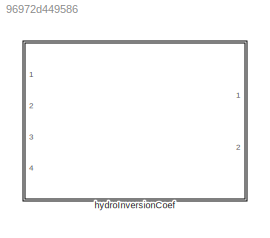
MODEL slx_96972d449586
KIND library
CONFIG AbsTol = auto
CONFIG EnableMultiTasking = off
CONFIG FixedStep = auto
CONFIG MaxStep = auto
CONFIG MinStep = auto
CONFIG RelTol = 1e-3
CONFIG SampleTimeConstraint = Unconstrained
CONFIG SolverName = VariableStepAuto
CONFIG StartTime = 0.0
CONFIG StopTime = 10.0
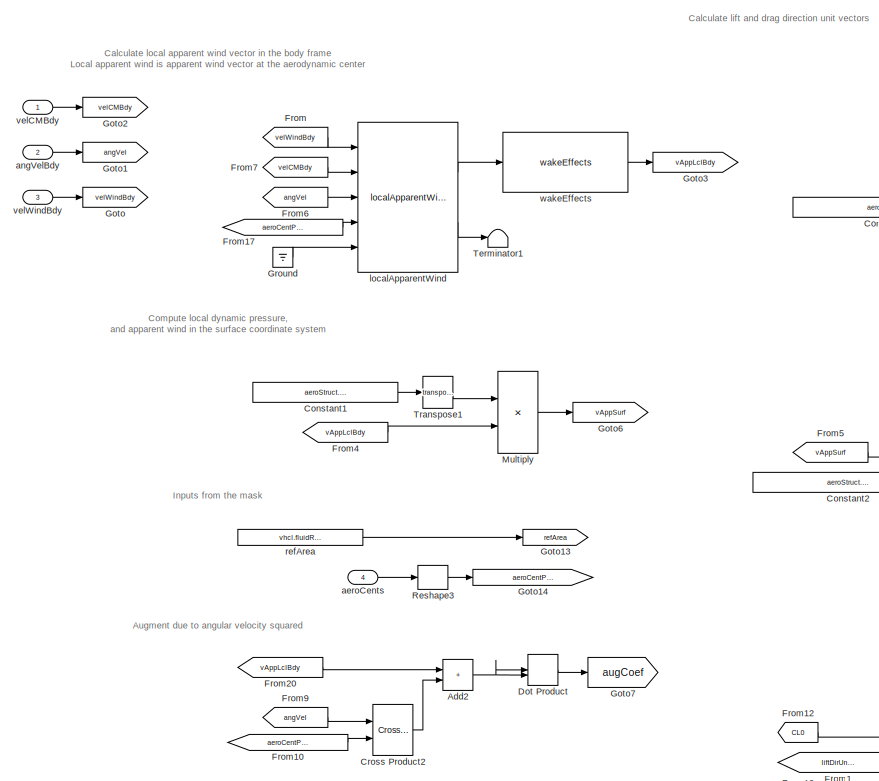
[diagram: hydroInversionCoef - part 1/2, middle left region]
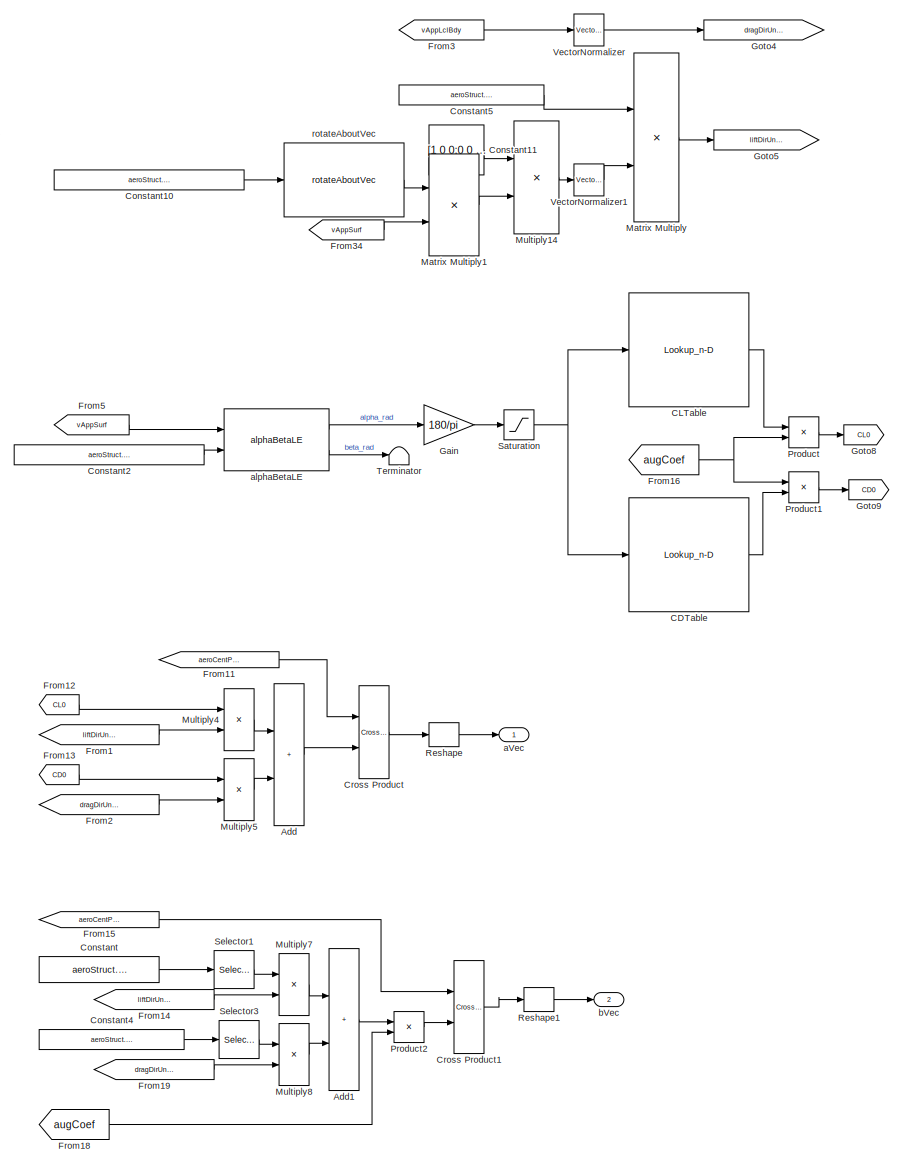
[diagram: hydroInversionCoef - part 2/2, right side, full height]
BLOCK [SubSystem] hydroInversionCoef
  Ports = [4, 2]
  RequestExecContextInheritance = off
BLOCK [Sum] hydroInversionCoef/Add
  IconShape = rectangular
  Ports = [2, 1]
BLOCK [Sum] hydroInversionCoef/Add1
  IconShape = rectangular
  Ports = [2, 1]
BLOCK [Sum] hydroInversionCoef/Add2
  IconShape = rectangular
  Ports = [2, 1]
BLOCK [Lookup_n-D] hydroInversionCoef/CDTable
  BreakpointsForDimension1 = aeroStruct.alpha.Value
  ExtrapMethod = Clip
  InputPortMap = u0
  InternalRulePriority = Speed
  LookupTableObject = CLTable
  NumberOfTableDimensions = 1
  Ports = [1, 1]
  RndMeth = Simplest
  Table = aeroStruct.CD.Value
  UseLastTableValue = on
BLOCK [Lookup_n-D] hydroInversionCoef/CLTable
  BreakpointsForDimension1 = aeroStruct.alpha.Value
  ExtrapMethod = Clip
  InputPortMap = u0
  InternalRulePriority = Speed
  LookupTableObject = CLTable
  NumberOfTableDimensions = 1
  Ports = [1, 1]
  RndMeth = Simplest
  Table = aeroStruct.CL.Value
  UseLastTableValue = on
BLOCK [Constant] hydroInversionCoef/Constant
  NameLocation = top
  Value = aeroStruct.gainCL.Value
BLOCK [Constant] hydroInversionCoef/Constant1
  Value = aeroStruct.RSurf2Bdy.Value
BLOCK [Constant] hydroInversionCoef/Constant10
  Value = aeroStruct.incAlphaUnitVecSurf.Value
BLOCK [Constant] hydroInversionCoef/Constant11
  Value = [1 0 0;0 0 0;0 0 1]
BLOCK [Constant] hydroInversionCoef/Constant2
  Value = aeroStruct.incAlphaUnitVecSurf.Value
BLOCK [Constant] hydroInversionCoef/Constant4
  NameLocation = top
  Value = aeroStruct.gainCD.Value
BLOCK [Constant] hydroInversionCoef/Constant5
  Value = aeroStruct.RSurf2Bdy.Value
BLOCK [Reference] hydroInversionCoef/Cross Product  REF=vrlib/Utilities/Cross Product
  Ports = [2, 1]
  SourceBlock = vrlib/Utilities/Cross Product
  SourceProductBaseCode = SL
  SourceType = Cross Product
BLOCK [Reference] hydroInversionCoef/Cross Product1  REF=vrlib/Utilities/Cross Product
  Ports = [2, 1]
  SourceBlock = vrlib/Utilities/Cross Product
  SourceProductBaseCode = SL
  SourceType = Cross Product
BLOCK [Reference] hydroInversionCoef/Cross Product2  REF=matrix_library/Cross Product
  Ports = [2, 1]
  SourceBlock = matrix_library/Cross Product
  SourceProductBaseCode = SL
  SourceType = CrossProduct
BLOCK [DotProduct] hydroInversionCoef/Dot Product
  OutDataTypeStr = Inherit: Inherit via internal rule
BLOCK [From] hydroInversionCoef/From
  GotoTag = velWindBdy
BLOCK [From] hydroInversionCoef/From1
  GotoTag = liftDirUnitVecBdy
BLOCK [From] hydroInversionCoef/From10
  GotoTag = aeroCentPosVecBdy
BLOCK [From] hydroInversionCoef/From11
  GotoTag = aeroCentPosVecBdy
BLOCK [From] hydroInversionCoef/From12
  GotoTag = CL0
BLOCK [From] hydroInversionCoef/From13
  GotoTag = CD0
BLOCK [From] hydroInversionCoef/From14
  GotoTag = liftDirUnitVecBdy
BLOCK [From] hydroInversionCoef/From15
  GotoTag = aeroCentPosVecBdy
BLOCK [From] hydroInversionCoef/From16
  GotoTag = augCoef
BLOCK [From] hydroInversionCoef/From17
  GotoTag = aeroCentPosVecBdy
BLOCK [From] hydroInversionCoef/From18
  GotoTag = augCoef
BLOCK [From] hydroInversionCoef/From19
  GotoTag = dragDirUnitVecBdy
BLOCK [From] hydroInversionCoef/From2
  GotoTag = dragDirUnitVecBdy
BLOCK [From] hydroInversionCoef/From20
  GotoTag = vAppLclBdy
BLOCK [From] hydroInversionCoef/From3
  GotoTag = vAppLclBdy
BLOCK [From] hydroInversionCoef/From34
  GotoTag = vAppSurf
BLOCK [From] hydroInversionCoef/From4
  GotoTag = vAppLclBdy
BLOCK [From] hydroInversionCoef/From5
  GotoTag = vAppSurf
BLOCK [From] hydroInversionCoef/From6
  GotoTag = angVel
BLOCK [From] hydroInversionCoef/From7
  GotoTag = velCMBdy
BLOCK [From] hydroInversionCoef/From9
  GotoTag = angVel
BLOCK [Gain] hydroInversionCoef/Gain
  Gain = 180/pi
BLOCK [Goto] hydroInversionCoef/Goto
  GotoTag = velWindBdy
BLOCK [Goto] hydroInversionCoef/Goto1
  GotoTag = angVel
BLOCK [Goto] hydroInversionCoef/Goto13
  GotoTag = refArea
BLOCK [Goto] hydroInversionCoef/Goto14
  GotoTag = aeroCentPosVecBdy
BLOCK [Goto] hydroInversionCoef/Goto2
  GotoTag = velCMBdy
BLOCK [Goto] hydroInversionCoef/Goto3
  GotoTag = vAppLclBdy
BLOCK [Goto] hydroInversionCoef/Goto4
  GotoTag = dragDirUnitVecBdy
BLOCK [Goto] hydroInversionCoef/Goto5
  GotoTag = liftDirUnitVecBdy
BLOCK [Goto] hydroInversionCoef/Goto6
  GotoTag = vAppSurf
BLOCK [Goto] hydroInversionCoef/Goto7
  GotoTag = augCoef
BLOCK [Goto] hydroInversionCoef/Goto8
  GotoTag = CL0
BLOCK [Goto] hydroInversionCoef/Goto9
  GotoTag = CD0
BLOCK [Ground] hydroInversionCoef/Ground
BLOCK [Product] hydroInversionCoef/Matrix Multiply
  Multiplication = Matrix(*)
  Ports = [2, 1]
BLOCK [Product] hydroInversionCoef/Matrix Multiply1
  Multiplication = Matrix(*)
  Ports = [2, 1]
BLOCK [Product] hydroInversionCoef/Multiply
  Multiplication = Matrix(*)
  Ports = [2, 1]
BLOCK [Product] hydroInversionCoef/Multiply14
  Multiplication = Matrix(*)
  Ports = [2, 1]
BLOCK [Product] hydroInversionCoef/Multiply4
  Ports = [2, 1]
BLOCK [Product] hydroInversionCoef/Multiply5
  Ports = [2, 1]
BLOCK [Product] hydroInversionCoef/Multiply7
  Ports = [2, 1]
BLOCK [Product] hydroInversionCoef/Multiply8
  Ports = [2, 1]
BLOCK [Product] hydroInversionCoef/Product
  Ports = [2, 1]
BLOCK [Product] hydroInversionCoef/Product1
  Ports = [2, 1]
BLOCK [Product] hydroInversionCoef/Product2
  Ports = [2, 1]
BLOCK [Reshape] hydroInversionCoef/Reshape
  OutputDimensionality = Column vector (2-D)
  Ports = [1, 1]
BLOCK [Reshape] hydroInversionCoef/Reshape1
  OutputDimensionality = Column vector (2-D)
  Ports = [1, 1]
BLOCK [Reshape] hydroInversionCoef/Reshape3
  OutputDimensionality = Column vector (2-D)
  Ports = [1, 1]
BLOCK [Saturate] hydroInversionCoef/Saturation
  LowerLimit = -90
  UpperLimit = 90
BLOCK [Selector] hydroInversionCoef/Selector1
  IndexOptions = Index vector (dialog)
  Indices = 2
  InputPortWidth = 3
  OutputSizes = 1
  Ports = [1, 1]
BLOCK [Selector] hydroInversionCoef/Selector3
  IndexOptions = Index vector (dialog)
  Indices = 2
  InputPortWidth = 3
  OutputSizes = 1
  Ports = [1, 1]
BLOCK [Terminator] hydroInversionCoef/Terminator
BLOCK [Terminator] hydroInversionCoef/Terminator1
BLOCK [Math] hydroInversionCoef/Transpose1
  Operator = transpose
  Ports = [1, 1]
  SignedPower = on
BLOCK [Reference] hydroInversionCoef/VectorNormalizer   REF=vectorNormalizer_ul/VectorNormalizer

  Ports = [1, 1]
  SourceBlock = vectorNormalizer_ul/VectorNormalizer
  SourceType = SubSystem
BLOCK [Reference] hydroInversionCoef/VectorNormalizer1  REF=vectorNormalizer_ul/VectorNormalizer

  Ports = [1, 1]
  SourceBlock = vectorNormalizer_ul/VectorNormalizer
  SourceType = SubSystem
BLOCK [Outport] hydroInversionCoef/aVec
  PortDimensions = [3 1]
  VectorParamsAs1DForOutWhenUnconnected = off
BLOCK [Inport] hydroInversionCoef/aeroCents
  Port = 4
BLOCK [Reference] hydroInversionCoef/alphaBetaLE  REF=alphaBetaLE_ul/alphaBetaLE
  Ports = [2, 2]
  SourceBlock = alphaBetaLE_ul/alphaBetaLE
  SourceType = SubSystem
BLOCK [Inport] hydroInversionCoef/angVelBdy
  Port = 2
BLOCK [Outport] hydroInversionCoef/bVec
  Port = 2
  PortDimensions = [3 1]
  VectorParamsAs1DForOutWhenUnconnected = off
BLOCK [Reference] hydroInversionCoef/localApparentWind  REF=localApparentWind_ul/localApparentWind
  Ports = [5, 2]
  SourceBlock = localApparentWind_ul/localApparentWind
  SourceType = SubSystem
BLOCK [Constant] hydroInversionCoef/refArea
  Value = vhcl.fluidRefArea.Value
BLOCK [Reference] hydroInversionCoef/rotateAboutVec  REF=rotateAboutVec/rotateAboutVec
  Ports = [1, 1]
  SourceBlock = rotateAboutVec/rotateAboutVec
BLOCK [Inport] hydroInversionCoef/velCMBdy
BLOCK [Inport] hydroInversionCoef/velWindBdy
  Port = 3
BLOCK [Reference] hydroInversionCoef/wakeEffects  REF=wakeEffect_ul/wakeEffects
  Ports = [1, 1]
  SourceBlock = wakeEffect_ul/wakeEffects
  SourceType = SubSystem
ANNOTATION hydroInversionCoef: Augment due to angular velocity squared
ANNOTATION hydroInversionCoef: Calculate lift and drag direction unit vectors
ANNOTATION hydroInversionCoef: Calculate local apparent wind vector in the body frame Local apparent wind is apparent wind vector at the aerodynamic center
ANNOTATION hydroInversionCoef: Compute local dynamic pressure, and apparent wind in the surface coordinate system
ANNOTATION hydroInversionCoef: Inputs from the mask
LINE hydroInversionCoef/Add1:1 -> hydroInversionCoef/Product2:1
NET hydroInversionCoef/Add2:1 -> hydroInversionCoef/Dot Product:1, hydroInversionCoef/Dot Product:2
LINE hydroInversionCoef/Add:1 -> hydroInversionCoef/Cross Product:2
LINE hydroInversionCoef/CDTable:1 -> hydroInversionCoef/Product1:2
LINE hydroInversionCoef/CLTable:1 -> hydroInversionCoef/Product:1
LINE hydroInversionCoef/Constant10:1 -> hydroInversionCoef/rotateAboutVec:1
LINE hydroInversionCoef/Constant11:1 -> hydroInversionCoef/Multiply14:1
LINE hydroInversionCoef/Constant1:1 -> hydroInversionCoef/Transpose1:1
LINE hydroInversionCoef/Constant2:1 -> hydroInversionCoef/alphaBetaLE:2
LINE hydroInversionCoef/Constant4:1 -> hydroInversionCoef/Selector3:1
LINE hydroInversionCoef/Constant5:1 -> hydroInversionCoef/Matrix Multiply:1
LINE hydroInversionCoef/Constant:1 -> hydroInversionCoef/Selector1:1
LINE hydroInversionCoef/Cross Product1:1 -> hydroInversionCoef/Reshape1:1
LINE hydroInversionCoef/Cross Product2:1 -> hydroInversionCoef/Add2:2
LINE hydroInversionCoef/Cross Product:1 -> hydroInversionCoef/Reshape:1
LINE hydroInversionCoef/Dot Product:1 -> hydroInversionCoef/Goto7:1
LINE hydroInversionCoef/From10:1 -> hydroInversionCoef/Cross Product2:2
LINE hydroInversionCoef/From11:1 -> hydroInversionCoef/Cross Product:1
LINE hydroInversionCoef/From12:1 -> hydroInversionCoef/Multiply4:1
LINE hydroInversionCoef/From13:1 -> hydroInversionCoef/Multiply5:1
LINE hydroInversionCoef/From14:1 -> hydroInversionCoef/Multiply7:2
LINE hydroInversionCoef/From15:1 -> hydroInversionCoef/Cross Product1:1
NET hydroInversionCoef/From16:1 -> hydroInversionCoef/Product1:1, hydroInversionCoef/Product:2
LINE hydroInversionCoef/From17:1 -> hydroInversionCoef/localApparentWind:4
LINE hydroInversionCoef/From18:1 -> hydroInversionCoef/Product2:2
LINE hydroInversionCoef/From19:1 -> hydroInversionCoef/Multiply8:2
LINE hydroInversionCoef/From1:1 -> hydroInversionCoef/Multiply4:2
LINE hydroInversionCoef/From20:1 -> hydroInversionCoef/Add2:1
LINE hydroInversionCoef/From2:1 -> hydroInversionCoef/Multiply5:2
LINE hydroInversionCoef/From34:1 -> hydroInversionCoef/Matrix Multiply1:2
LINE hydroInversionCoef/From3:1 -> hydroInversionCoef/VectorNormalizer :1
LINE hydroInversionCoef/From4:1 -> hydroInversionCoef/Multiply:2
LINE hydroInversionCoef/From5:1 -> hydroInversionCoef/alphaBetaLE:1
LINE hydroInversionCoef/From6:1 -> hydroInversionCoef/localApparentWind:3
LINE hydroInversionCoef/From7:1 -> hydroInversionCoef/localApparentWind:2
LINE hydroInversionCoef/From9:1 -> hydroInversionCoef/Cross Product2:1
LINE hydroInversionCoef/From:1 -> hydroInversionCoef/localApparentWind:1
LINE hydroInversionCoef/Gain:1 -> hydroInversionCoef/Saturation:1
LINE hydroInversionCoef/Ground:1 -> hydroInversionCoef/localApparentWind:5
LINE hydroInversionCoef/Matrix Multiply1:1 -> hydroInversionCoef/Multiply14:2
LINE hydroInversionCoef/Matrix Multiply:1 -> hydroInversionCoef/Goto5:1
LINE hydroInversionCoef/Multiply14:1 -> hydroInversionCoef/VectorNormalizer1:1
LINE hydroInversionCoef/Multiply4:1 -> hydroInversionCoef/Add:1
LINE hydroInversionCoef/Multiply5:1 -> hydroInversionCoef/Add:2
LINE hydroInversionCoef/Multiply7:1 -> hydroInversionCoef/Add1:1
LINE hydroInversionCoef/Multiply8:1 -> hydroInversionCoef/Add1:2
LINE hydroInversionCoef/Multiply:1 -> hydroInversionCoef/Goto6:1
LINE hydroInversionCoef/Product1:1 -> hydroInversionCoef/Goto9:1
LINE hydroInversionCoef/Product2:1 -> hydroInversionCoef/Cross Product1:2
LINE hydroInversionCoef/Product:1 -> hydroInversionCoef/Goto8:1
LINE hydroInversionCoef/Reshape1:1 -> hydroInversionCoef/bVec:1
LINE hydroInversionCoef/Reshape3:1 -> hydroInversionCoef/Goto14:1
LINE hydroInversionCoef/Reshape:1 -> hydroInversionCoef/aVec:1
NET hydroInversionCoef/Saturation:1 -> hydroInversionCoef/CDTable:1, hydroInversionCoef/CLTable:1
LINE hydroInversionCoef/Selector1:1 -> hydroInversionCoef/Multiply7:1
LINE hydroInversionCoef/Selector3:1 -> hydroInversionCoef/Multiply8:1
LINE hydroInversionCoef/Transpose1:1 -> hydroInversionCoef/Multiply:1
LINE hydroInversionCoef/VectorNormalizer :1 -> hydroInversionCoef/Goto4:1
LINE hydroInversionCoef/VectorNormalizer1:1 -> hydroInversionCoef/Matrix Multiply:2
LINE hydroInversionCoef/aeroCents:1 -> hydroInversionCoef/Reshape3:1
LINE hydroInversionCoef/alphaBetaLE:1 -> hydroInversionCoef/Gain:1
LINE hydroInversionCoef/alphaBetaLE:2 -> hydroInversionCoef/Terminator:1
LINE hydroInversionCoef/angVelBdy:1 -> hydroInversionCoef/Goto1:1
LINE hydroInversionCoef/localApparentWind:1 -> hydroInversionCoef/wakeEffects:1
LINE hydroInversionCoef/localApparentWind:2 -> hydroInversionCoef/Terminator1:1
LINE hydroInversionCoef/refArea:1 -> hydroInversionCoef/Goto13:1
LINE hydroInversionCoef/rotateAboutVec:1 -> hydroInversionCoef/Matrix Multiply1:1
LINE hydroInversionCoef/velCMBdy:1 -> hydroInversionCoef/Goto2:1
LINE hydroInversionCoef/velWindBdy:1 -> hydroInversionCoef/Goto:1
LINE hydroInversionCoef/wakeEffects:1 -> hydroInversionCoef/Goto3:1
note: NET lines group one-source signal fan-out (src -> all destinations, sorted); 1:1 wires keep LINE
